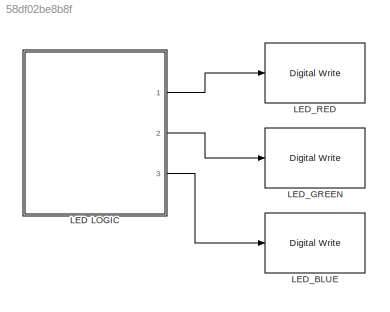
MODEL slx_58df02be8b8f
KIND model
CONFIG AbsTol = auto
CONFIG EnableMultiTasking = on
CONFIG FixedStep = 1e-3
CONFIG MaxStep = auto
CONFIG MinStep = auto
CONFIG RelTol = 1e-3
CONFIG SampleTimeConstraint = Unconstrained
CONFIG SolverName = FixedStepAuto
CONFIG StartTime = 0.0
CONFIG StopTime = 100
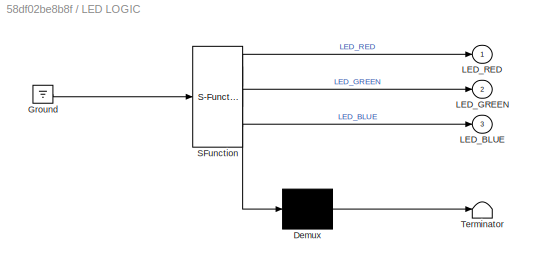
BLOCK [SubSystem] LED LOGIC
  ErrorFcn = Stateflow.Translate.translate
  PermitHierarchicalResolution = ExplicitOnly
  Ports = [0, 3]
  RequestExecContextInheritance = off
  SFBlockType = Chart
  TreatAsAtomicUnit = on
BLOCK [Demux] LED LOGIC/ Demux 
  Outputs = 1
  Ports = [1, 1]
BLOCK [Ground] LED LOGIC/ Ground 
BLOCK [S-Function] LED LOGIC/ SFunction 
  EnableBusSupport = on
  FunctionName = sf_sfun
  PortCounts = [1 4]
  Ports = [1, 4]
  SFcnIsStateOwnerBlock = off
  SFunctionDeploymentMode = off
  Tag = Stateflow S-Function 3
BLOCK [Terminator] LED LOGIC/ Terminator 
BLOCK [Outport] LED LOGIC/LED_BLUE
  Port = 3
BLOCK [Outport] LED LOGIC/LED_GREEN
  Port = 2
BLOCK [Outport] LED LOGIC/LED_RED
BLOCK [Reference] LED_BLUE  REF=frdmk64flib/Digital Write
  Ports = [1]
  SourceBlock = frdmk64flib/Digital Write
  SourceProductBaseCode = EC_FRDM_K64F
  SourceType = freedomk64f.DigitalWrite
BLOCK [Reference] LED_GREEN  REF=frdmk64flib/Digital Write
  Ports = [1]
  SourceBlock = frdmk64flib/Digital Write
  SourceProductBaseCode = EC_FRDM_K64F
  SourceType = freedomk64f.DigitalWrite
BLOCK [Reference] LED_RED  REF=frdmk64flib/Digital Write
  Ports = [1]
  SourceBlock = frdmk64flib/Digital Write
  SourceProductBaseCode = EC_FRDM_K64F
  SourceType = freedomk64f.DigitalWrite
LINE LED LOGIC:1 -> LED_RED:1
LINE LED LOGIC:2 -> LED_GREEN:1
LINE LED LOGIC:3 -> LED_BLUE:1
CHART LED LOGIC states=3 transitions=4
  STATE_LABEL 'LED_RED_STATE\nentry:\nLED_BLUE = false;\nLED_RED = true;\n'
  STATE_LABEL 'LED_GREEN_STATE\nentry:\nLED_RED = false;\nLED_GREEN = true;\n'
  STATE_LABEL 'LED_BLUE_STATE\nentry:\nLED_GREEN = false;\nLED_BLUE = true;'
CHART  states=0 transitions=0
